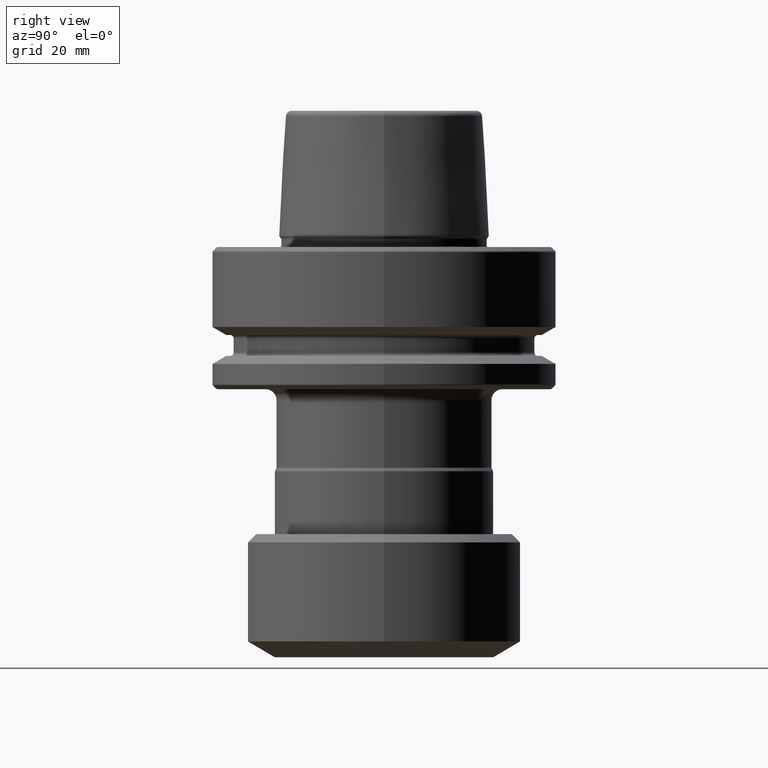
[diagram: clean part render]
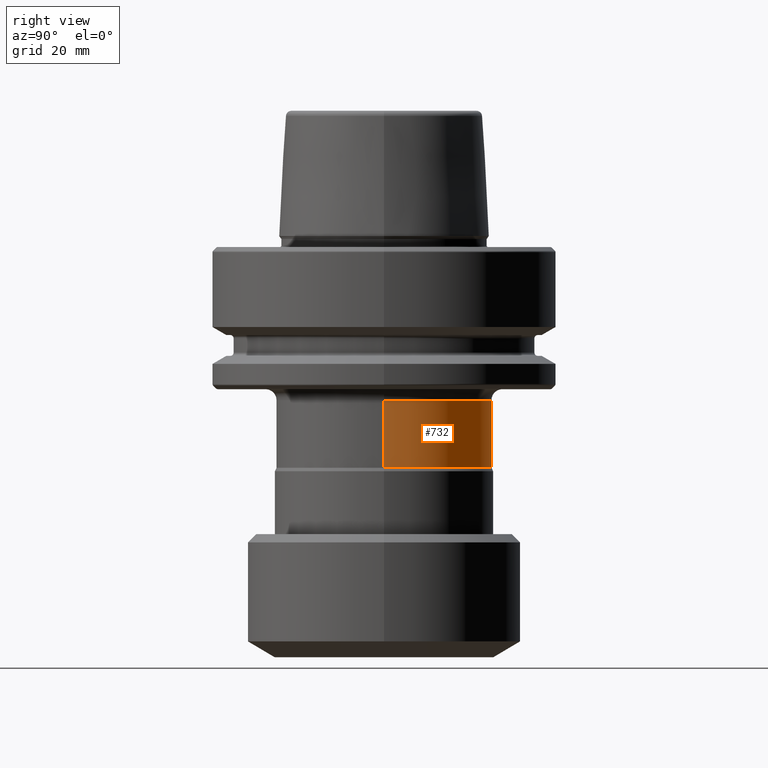
[diagram: same view with one face highlighted and labeled with its STEP entity id]
A machine part, right view. The second image highlights one B-rep face of the part: STEP entity #732.
In plain terms, the highlighted cylindrical surface (partial cylindrical patch) has radius 19.65 mm, axis along (-0, -0, 1).
Its self-contained STEP definition (entity closure, byte-faithful):
#47 = DIRECTION ( 'NONE',  ( 1.000000000000000000, 0.0000000000000000000, 0.0000000000000000000 ) ) ;
#64 = CIRCLE ( 'NONE', #1252, 19.64999999999999900 ) ;
#78 = VERTEX_POINT ( 'NONE', #1416 ) ;
#190 = VECTOR ( 'NONE', #1115, 1000.000000000000000 ) ;
#272 = LINE ( 'NONE', #666, #884 ) ;
#284 = AXIS2_PLACEMENT_3D ( 'NONE', #1220, #491, #1334 ) ;
#358 = CARTESIAN_POINT ( 'NONE',  ( 19.64999999999999900, 0.0000000000000000000, -33.00000000000001400 ) ) ;
#376 = CARTESIAN_POINT ( 'NONE',  ( -19.64999999999999900, 2.406430960324548600E-015, 47.99784906664302000 ) ) ;
#379 = EDGE_CURVE ( 'NONE', #78, #699, #564, .T. ) ;
#448 = DIRECTION ( 'NONE',  ( -0.0000000000000000000, -0.0000000000000000000, 1.000000000000000000 ) ) ;
#491 = DIRECTION ( 'NONE',  ( 0.0000000000000000000, 0.0000000000000000000, -1.000000000000000000 ) ) ;
#547 = ORIENTED_EDGE ( 'NONE', *, *, #1446, .F. ) ;
#550 = EDGE_CURVE ( 'NONE', #1304, #78, #64, .T. ) ;
#564 = LINE ( 'NONE', #376, #190 ) ;
#627 = EDGE_LOOP ( 'NONE', ( #1389, #1437, #1300, #547 ) ) ;
#666 = CARTESIAN_POINT ( 'NONE',  ( 19.64999999999999900, 0.0000000000000000000, 47.99784906664302000 ) ) ;
#699 = VERTEX_POINT ( 'NONE', #1294 ) ;
#715 = CYLINDRICAL_SURFACE ( 'NONE', #806, 19.64999999999999900 ) ;
#732 = ADVANCED_FACE ( 'NONE', ( #1367 ), #715, .T. ) ;
#777 = DIRECTION ( 'NONE',  ( -0.0000000000000000000, -0.0000000000000000000, 1.000000000000000000 ) ) ;
#805 = CARTESIAN_POINT ( 'NONE',  ( 0.0000000000000000000, 0.0000000000000000000, 47.99784906664302000 ) ) ;
#806 = AXIS2_PLACEMENT_3D ( 'NONE', #805, #448, #1299 ) ;
#871 = EDGE_CURVE ( 'NONE', #699, #1144, #1179, .T. ) ;
#884 = VECTOR ( 'NONE', #1285, 1000.000000000000000 ) ;
#1115 = DIRECTION ( 'NONE',  ( -0.0000000000000000000, -0.0000000000000000000, 1.000000000000000000 ) ) ;
#1144 = VERTEX_POINT ( 'NONE', #358 ) ;
#1179 = CIRCLE ( 'NONE', #284, 19.64999999999999900 ) ;
#1220 = CARTESIAN_POINT ( 'NONE',  ( 0.0000000000000000000, 0.0000000000000000000, -33.00000000000001400 ) ) ;
#1252 = AXIS2_PLACEMENT_3D ( 'NONE', #1515, #777, #47 ) ;
#1285 = DIRECTION ( 'NONE',  ( -0.0000000000000000000, -0.0000000000000000000, 1.000000000000000000 ) ) ;
#1294 = CARTESIAN_POINT ( 'NONE',  ( -19.64999999999999900, 2.406430960324548600E-015, -33.00000000000001400 ) ) ;
#1299 = DIRECTION ( 'NONE',  ( 1.000000000000000000, 0.0000000000000000000, 0.0000000000000000000 ) ) ;
#1300 = ORIENTED_EDGE ( 'NONE', *, *, #871, .T. ) ;
#1304 = VERTEX_POINT ( 'NONE', #1371 ) ;
#1334 = DIRECTION ( 'NONE',  ( -1.000000000000000000, 0.0000000000000000000, 0.0000000000000000000 ) ) ;
#1367 = FACE_OUTER_BOUND ( 'NONE', #627, .T. ) ;
#1371 = CARTESIAN_POINT ( 'NONE',  ( 19.64999999999999900, 0.0000000000000000000, -45.35664792384712000 ) ) ;
#1389 = ORIENTED_EDGE ( 'NONE', *, *, #550, .T. ) ;
#1416 = CARTESIAN_POINT ( 'NONE',  ( -19.64999999999999900, 2.406430960324548600E-015, -45.35664792384712000 ) ) ;
#1437 = ORIENTED_EDGE ( 'NONE', *, *, #379, .T. ) ;
#1446 = EDGE_CURVE ( 'NONE', #1304, #1144, #272, .T. ) ;
#1515 = CARTESIAN_POINT ( 'NONE',  ( 0.0000000000000000000, 0.0000000000000000000, -45.35664792384712000 ) ) ;